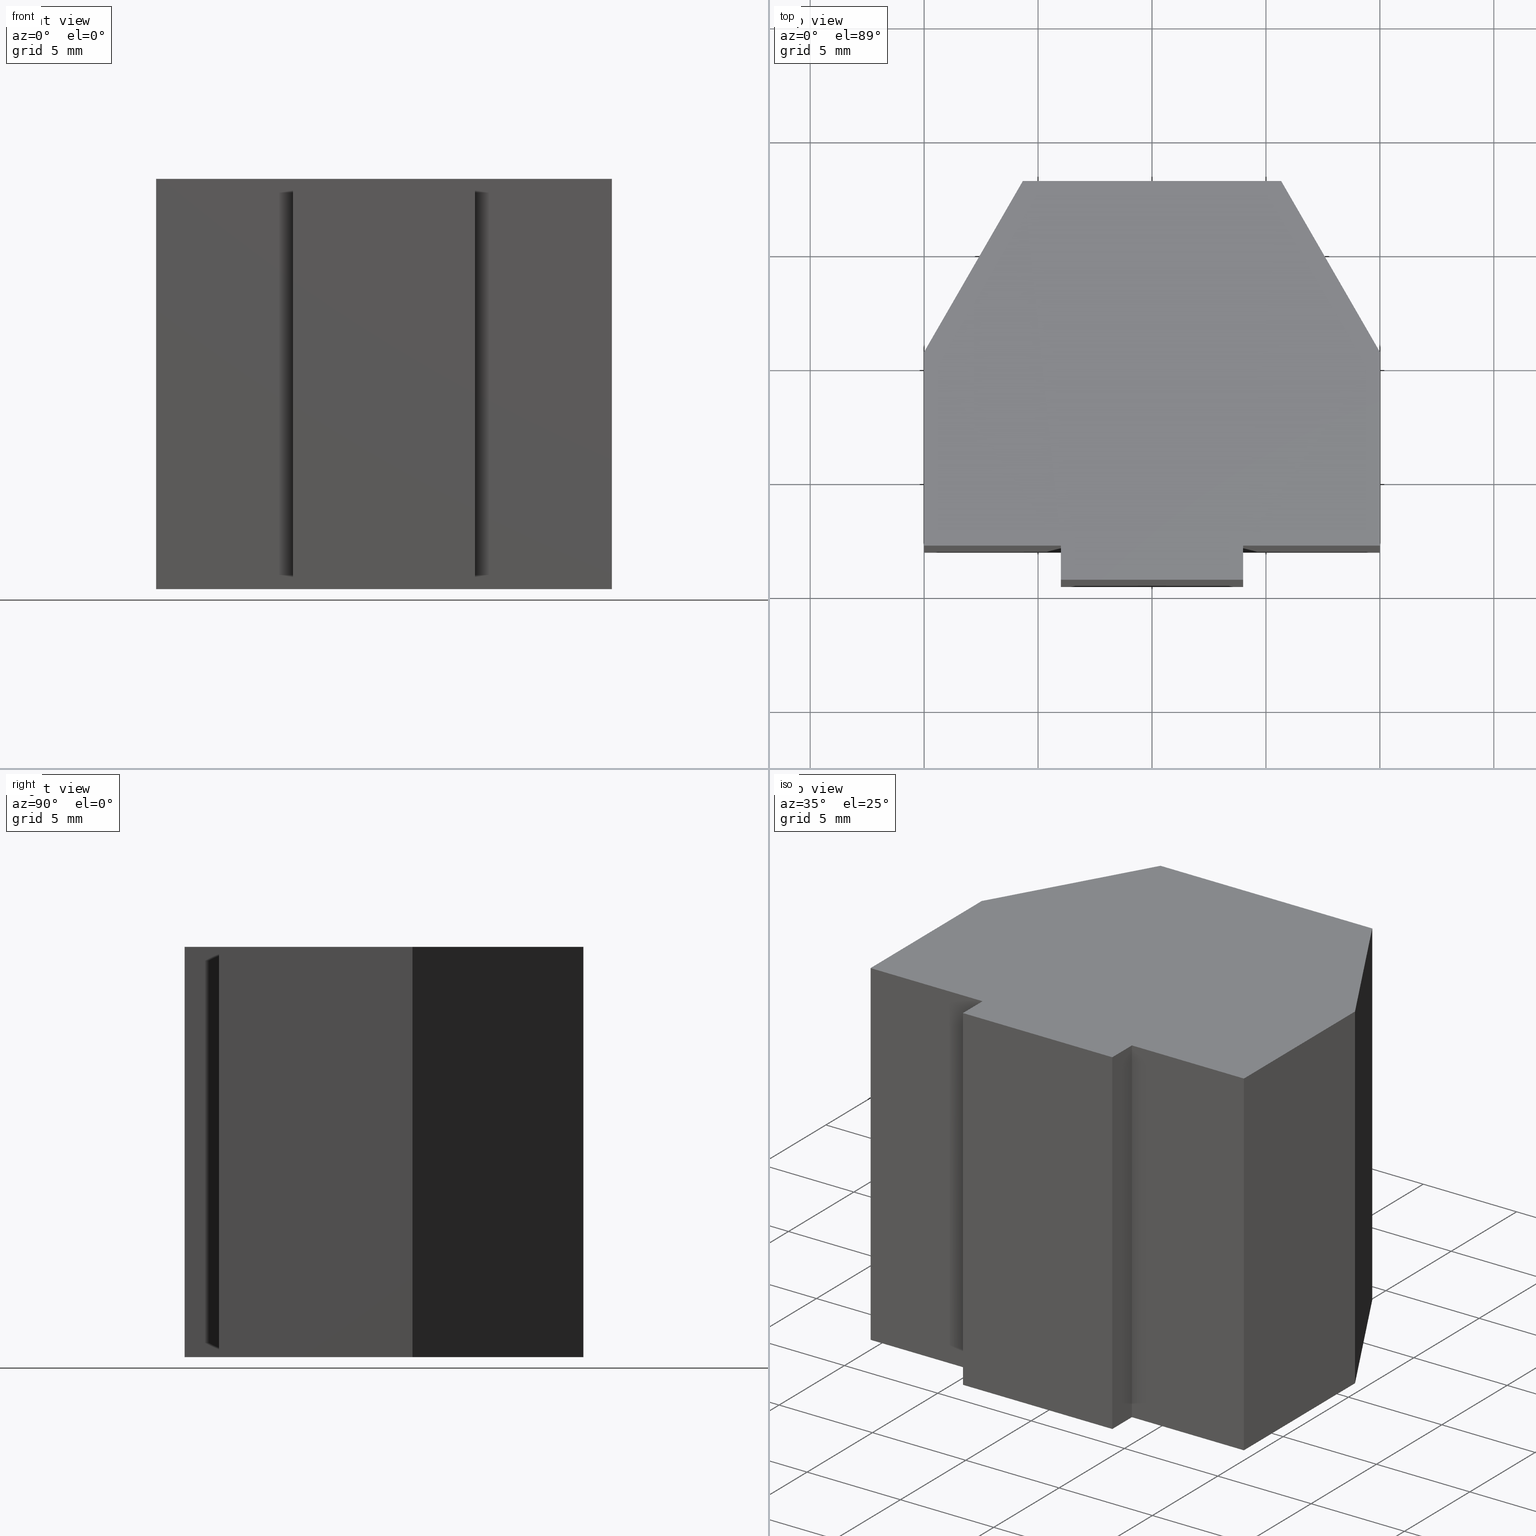
[diagram: canonical four-view strip — front | top / right | iso, engineering-drawing reading convention]
A machine part, canonical four-view strip (front | top / right | iso — engineering-drawing reading convention). The complete STEP part file that produces these views, byte-faithful:
ISO-10303-21;
HEADER;
/* Generated by software containing ST-Developer
 * from STEP Tools, Inc. (www.steptools.com) 
 */

FILE_DESCRIPTION(
/* description */ (''),
/* implementation_level */ '2;1');

FILE_NAME(
/* name */ 'E_3_01_06_07_00_WKZ-0140.stp',
/* time_stamp */ '2025-11-24T11:54:22+01:00',
/* author */ ('d.fischer'),
/* organization */ (''),
/* preprocessor_version */ 'ST-DEVELOPER v20',
/* originating_system */ 'Autodesk Inventor 2025',
/* authorisation */ '');

FILE_SCHEMA (('AUTOMOTIVE_DESIGN { 1 0 10303 214 3 1 1 }'));
ENDSEC;

DATA;
#10=MECHANICAL_DESIGN_GEOMETRIC_PRESENTATION_REPRESENTATION('',(#14,#15),
#391);
#11=SHAPE_REPRESENTATION_RELATIONSHIP('SRR','None',#398,#12);
#12=ADVANCED_BREP_SHAPE_REPRESENTATION('',(#13),#390);
#13=MANIFOLD_SOLID_BREP('Volumenk\X\F6rper1',#234);
#14=STYLED_ITEM('',(#408),#224);
#15=STYLED_ITEM('',(#407),#13);
#16=FACE_OUTER_BOUND('',#28,.T.);
#17=FACE_OUTER_BOUND('',#29,.T.);
#18=FACE_OUTER_BOUND('',#30,.T.);
#19=FACE_OUTER_BOUND('',#31,.T.);
#20=FACE_OUTER_BOUND('',#32,.T.);
#21=FACE_OUTER_BOUND('',#33,.T.);
#22=FACE_OUTER_BOUND('',#34,.T.);
#23=FACE_OUTER_BOUND('',#35,.T.);
#24=FACE_OUTER_BOUND('',#36,.T.);
#25=FACE_OUTER_BOUND('',#37,.T.);
#26=FACE_OUTER_BOUND('',#38,.T.);
#27=FACE_OUTER_BOUND('',#39,.T.);
#28=EDGE_LOOP('',(#150,#151,#152,#153,#154,#155,#156,#157,#158,#159));
#29=EDGE_LOOP('',(#160,#161,#162,#163));
#30=EDGE_LOOP('',(#164,#165,#166,#167));
#31=EDGE_LOOP('',(#168,#169,#170,#171));
#32=EDGE_LOOP('',(#172,#173,#174,#175));
#33=EDGE_LOOP('',(#176,#177,#178,#179));
#34=EDGE_LOOP('',(#180,#181,#182,#183));
#35=EDGE_LOOP('',(#184,#185,#186,#187));
#36=EDGE_LOOP('',(#188,#189,#190,#191));
#37=EDGE_LOOP('',(#192,#193,#194,#195));
#38=EDGE_LOOP('',(#196,#197,#198,#199));
#39=EDGE_LOOP('',(#200,#201,#202,#203,#204,#205,#206,#207,#208,#209));
#40=LINE('',#329,#70);
#41=LINE('',#331,#71);
#42=LINE('',#333,#72);
#43=LINE('',#335,#73);
#44=LINE('',#337,#74);
#45=LINE('',#339,#75);
#46=LINE('',#341,#76);
#47=LINE('',#343,#77);
#48=LINE('',#345,#78);
#49=LINE('',#346,#79);
#50=LINE('',#350,#80);
#51=LINE('',#351,#81);
#52=LINE('',#352,#82);
#53=LINE('',#355,#83);
#54=LINE('',#356,#84);
#55=LINE('',#359,#85);
#56=LINE('',#360,#86);
#57=LINE('',#363,#87);
#58=LINE('',#364,#88);
#59=LINE('',#367,#89);
#60=LINE('',#368,#90);
#61=LINE('',#371,#91);
#62=LINE('',#372,#92);
#63=LINE('',#375,#93);
#64=LINE('',#376,#94);
#65=LINE('',#379,#95);
#66=LINE('',#380,#96);
#67=LINE('',#383,#97);
#68=LINE('',#384,#98);
#69=LINE('',#386,#99);
#70=VECTOR('',#273,10.);
#71=VECTOR('',#274,10.);
#72=VECTOR('',#275,10.);
#73=VECTOR('',#276,10.);
#74=VECTOR('',#277,10.);
#75=VECTOR('',#278,10.);
#76=VECTOR('',#279,10.);
#77=VECTOR('',#280,10.);
#78=VECTOR('',#281,10.);
#79=VECTOR('',#282,10.);
#80=VECTOR('',#285,10.);
#81=VECTOR('',#286,10.);
#82=VECTOR('',#287,10.);
#83=VECTOR('',#290,10.);
#84=VECTOR('',#291,10.);
#85=VECTOR('',#294,10.);
#86=VECTOR('',#295,10.);
#87=VECTOR('',#298,10.);
#88=VECTOR('',#299,10.);
#89=VECTOR('',#302,10.);
#90=VECTOR('',#303,10.);
#91=VECTOR('',#306,10.);
#92=VECTOR('',#307,10.);
#93=VECTOR('',#310,10.);
#94=VECTOR('',#311,10.);
#95=VECTOR('',#314,10.);
#96=VECTOR('',#315,10.);
#97=VECTOR('',#318,10.);
#98=VECTOR('',#319,10.);
#99=VECTOR('',#322,10.);
#100=VERTEX_POINT('',#327);
#101=VERTEX_POINT('',#328);
#102=VERTEX_POINT('',#330);
#103=VERTEX_POINT('',#332);
#104=VERTEX_POINT('',#334);
#105=VERTEX_POINT('',#336);
#106=VERTEX_POINT('',#338);
#107=VERTEX_POINT('',#340);
#108=VERTEX_POINT('',#342);
#109=VERTEX_POINT('',#344);
#110=VERTEX_POINT('',#348);
#111=VERTEX_POINT('',#349);
#112=VERTEX_POINT('',#354);
#113=VERTEX_POINT('',#358);
#114=VERTEX_POINT('',#362);
#115=VERTEX_POINT('',#366);
#116=VERTEX_POINT('',#370);
#117=VERTEX_POINT('',#374);
#118=VERTEX_POINT('',#378);
#119=VERTEX_POINT('',#382);
#120=EDGE_CURVE('',#100,#101,#40,.T.);
#121=EDGE_CURVE('',#102,#100,#41,.T.);
#122=EDGE_CURVE('',#103,#102,#42,.T.);
#123=EDGE_CURVE('',#104,#103,#43,.T.);
#124=EDGE_CURVE('',#105,#104,#44,.T.);
#125=EDGE_CURVE('',#106,#105,#45,.T.);
#126=EDGE_CURVE('',#107,#106,#46,.T.);
#127=EDGE_CURVE('',#108,#107,#47,.T.);
#128=EDGE_CURVE('',#109,#108,#48,.T.);
#129=EDGE_CURVE('',#101,#109,#49,.T.);
#130=EDGE_CURVE('',#110,#111,#50,.T.);
#131=EDGE_CURVE('',#111,#103,#51,.T.);
#132=EDGE_CURVE('',#110,#102,#52,.T.);
#133=EDGE_CURVE('',#111,#112,#53,.T.);
#134=EDGE_CURVE('',#112,#104,#54,.T.);
#135=EDGE_CURVE('',#112,#113,#55,.T.);
#136=EDGE_CURVE('',#113,#105,#56,.T.);
#137=EDGE_CURVE('',#113,#114,#57,.T.);
#138=EDGE_CURVE('',#114,#106,#58,.T.);
#139=EDGE_CURVE('',#114,#115,#59,.T.);
#140=EDGE_CURVE('',#115,#107,#60,.T.);
#141=EDGE_CURVE('',#115,#116,#61,.T.);
#142=EDGE_CURVE('',#116,#108,#62,.T.);
#143=EDGE_CURVE('',#116,#117,#63,.T.);
#144=EDGE_CURVE('',#117,#109,#64,.T.);
#145=EDGE_CURVE('',#117,#118,#65,.T.);
#146=EDGE_CURVE('',#118,#101,#66,.T.);
#147=EDGE_CURVE('',#118,#119,#67,.T.);
#148=EDGE_CURVE('',#100,#119,#68,.T.);
#149=EDGE_CURVE('',#119,#110,#69,.T.);
#150=ORIENTED_EDGE('',*,*,#120,.F.);
#151=ORIENTED_EDGE('',*,*,#121,.F.);
#152=ORIENTED_EDGE('',*,*,#122,.F.);
#153=ORIENTED_EDGE('',*,*,#123,.F.);
#154=ORIENTED_EDGE('',*,*,#124,.F.);
#155=ORIENTED_EDGE('',*,*,#125,.F.);
#156=ORIENTED_EDGE('',*,*,#126,.F.);
#157=ORIENTED_EDGE('',*,*,#127,.F.);
#158=ORIENTED_EDGE('',*,*,#128,.F.);
#159=ORIENTED_EDGE('',*,*,#129,.F.);
#160=ORIENTED_EDGE('',*,*,#130,.T.);
#161=ORIENTED_EDGE('',*,*,#131,.T.);
#162=ORIENTED_EDGE('',*,*,#122,.T.);
#163=ORIENTED_EDGE('',*,*,#132,.F.);
#164=ORIENTED_EDGE('',*,*,#133,.T.);
#165=ORIENTED_EDGE('',*,*,#134,.T.);
#166=ORIENTED_EDGE('',*,*,#123,.T.);
#167=ORIENTED_EDGE('',*,*,#131,.F.);
#168=ORIENTED_EDGE('',*,*,#135,.T.);
#169=ORIENTED_EDGE('',*,*,#136,.T.);
#170=ORIENTED_EDGE('',*,*,#124,.T.);
#171=ORIENTED_EDGE('',*,*,#134,.F.);
#172=ORIENTED_EDGE('',*,*,#137,.T.);
#173=ORIENTED_EDGE('',*,*,#138,.T.);
#174=ORIENTED_EDGE('',*,*,#125,.T.);
#175=ORIENTED_EDGE('',*,*,#136,.F.);
#176=ORIENTED_EDGE('',*,*,#139,.T.);
#177=ORIENTED_EDGE('',*,*,#140,.T.);
#178=ORIENTED_EDGE('',*,*,#126,.T.);
#179=ORIENTED_EDGE('',*,*,#138,.F.);
#180=ORIENTED_EDGE('',*,*,#141,.T.);
#181=ORIENTED_EDGE('',*,*,#142,.T.);
#182=ORIENTED_EDGE('',*,*,#127,.T.);
#183=ORIENTED_EDGE('',*,*,#140,.F.);
#184=ORIENTED_EDGE('',*,*,#143,.T.);
#185=ORIENTED_EDGE('',*,*,#144,.T.);
#186=ORIENTED_EDGE('',*,*,#128,.T.);
#187=ORIENTED_EDGE('',*,*,#142,.F.);
#188=ORIENTED_EDGE('',*,*,#145,.T.);
#189=ORIENTED_EDGE('',*,*,#146,.T.);
#190=ORIENTED_EDGE('',*,*,#129,.T.);
#191=ORIENTED_EDGE('',*,*,#144,.F.);
#192=ORIENTED_EDGE('',*,*,#147,.T.);
#193=ORIENTED_EDGE('',*,*,#148,.F.);
#194=ORIENTED_EDGE('',*,*,#120,.T.);
#195=ORIENTED_EDGE('',*,*,#146,.F.);
#196=ORIENTED_EDGE('',*,*,#149,.T.);
#197=ORIENTED_EDGE('',*,*,#132,.T.);
#198=ORIENTED_EDGE('',*,*,#121,.T.);
#199=ORIENTED_EDGE('',*,*,#148,.T.);
#200=ORIENTED_EDGE('',*,*,#130,.F.);
#201=ORIENTED_EDGE('',*,*,#149,.F.);
#202=ORIENTED_EDGE('',*,*,#147,.F.);
#203=ORIENTED_EDGE('',*,*,#145,.F.);
#204=ORIENTED_EDGE('',*,*,#143,.F.);
#205=ORIENTED_EDGE('',*,*,#141,.F.);
#206=ORIENTED_EDGE('',*,*,#139,.F.);
#207=ORIENTED_EDGE('',*,*,#137,.F.);
#208=ORIENTED_EDGE('',*,*,#135,.F.);
#209=ORIENTED_EDGE('',*,*,#133,.F.);
#210=PLANE('',#257);
#211=PLANE('',#258);
#212=PLANE('',#259);
#213=PLANE('',#260);
#214=PLANE('',#261);
#215=PLANE('',#262);
#216=PLANE('',#263);
#217=PLANE('',#264);
#218=PLANE('',#265);
#219=PLANE('',#266);
#220=PLANE('',#267);
#221=PLANE('',#268);
#222=ADVANCED_FACE('',(#16),#210,.F.);
#223=ADVANCED_FACE('',(#17),#211,.T.);
#224=ADVANCED_FACE('',(#18),#212,.T.);
#225=ADVANCED_FACE('',(#19),#213,.T.);
#226=ADVANCED_FACE('',(#20),#214,.T.);
#227=ADVANCED_FACE('',(#21),#215,.T.);
#228=ADVANCED_FACE('',(#22),#216,.T.);
#229=ADVANCED_FACE('',(#23),#217,.T.);
#230=ADVANCED_FACE('',(#24),#218,.T.);
#231=ADVANCED_FACE('',(#25),#219,.T.);
#232=ADVANCED_FACE('',(#26),#220,.T.);
#233=ADVANCED_FACE('',(#27),#221,.T.);
#234=CLOSED_SHELL('',(#222,#223,#224,#225,#226,#227,#228,#229,#230,#231,
#232,#233));
#235=DERIVED_UNIT_ELEMENT(#238,1.);
#236=DERIVED_UNIT_ELEMENT(#393,-3.);
#237=DIMENSIONAL_EXPONENTS(0.,1.,0.,0.,0.,0.,0.);
#238=(
CONVERSION_BASED_UNIT('gram',#240)
MASS_UNIT()
NAMED_UNIT(#237)
);
#239=(
MASS_UNIT()
NAMED_UNIT(*)
SI_UNIT(.KILO.,.GRAM.)
);
#240=MASS_MEASURE_WITH_UNIT(MASS_MEASURE(0.001),#239);
#241=DERIVED_UNIT((#235,#236));
#242=MEASURE_REPRESENTATION_ITEM('density measure',
POSITIVE_RATIO_MEASURE(8.03),#241);
#243=PROPERTY_DEFINITION_REPRESENTATION(#248,#245);
#244=PROPERTY_DEFINITION_REPRESENTATION(#249,#246);
#245=REPRESENTATION('material name',(#247),#390);
#246=REPRESENTATION('density',(#242),#390);
#247=DESCRIPTIVE_REPRESENTATION_ITEM('1.4301','1.4301');
#248=PROPERTY_DEFINITION('material property','material name',#400);
#249=PROPERTY_DEFINITION('material property','density of part',#400);
#250=DATE_TIME_ROLE('creation_date');
#251=APPLIED_DATE_AND_TIME_ASSIGNMENT(#252,#250,(#400));
#252=DATE_AND_TIME(#253,#254);
#253=CALENDAR_DATE(2011,18,10);
#254=LOCAL_TIME(0,0,0.,#255);
#255=COORDINATED_UNIVERSAL_TIME_OFFSET(0,0,.BEHIND.);
#256=AXIS2_PLACEMENT_3D('',#325,#269,#270);
#257=AXIS2_PLACEMENT_3D('',#326,#271,#272);
#258=AXIS2_PLACEMENT_3D('',#347,#283,#284);
#259=AXIS2_PLACEMENT_3D('',#353,#288,#289);
#260=AXIS2_PLACEMENT_3D('',#357,#292,#293);
#261=AXIS2_PLACEMENT_3D('',#361,#296,#297);
#262=AXIS2_PLACEMENT_3D('',#365,#300,#301);
#263=AXIS2_PLACEMENT_3D('',#369,#304,#305);
#264=AXIS2_PLACEMENT_3D('',#373,#308,#309);
#265=AXIS2_PLACEMENT_3D('',#377,#312,#313);
#266=AXIS2_PLACEMENT_3D('',#381,#316,#317);
#267=AXIS2_PLACEMENT_3D('',#385,#320,#321);
#268=AXIS2_PLACEMENT_3D('',#387,#323,#324);
#269=DIRECTION('axis',(0.,0.,1.));
#270=DIRECTION('refdir',(1.,0.,0.));
#271=DIRECTION('center_axis',(0.,0.,1.));
#272=DIRECTION('ref_axis',(1.,0.,0.));
#273=DIRECTION('',(-2.61228946970625E-16,1.,0.));
#274=DIRECTION('',(1.,0.,0.));
#275=DIRECTION('',(0.,1.,0.));
#276=DIRECTION('',(1.,0.,0.));
#277=DIRECTION('',(0.,-1.,0.));
#278=DIRECTION('',(1.,0.,0.));
#279=DIRECTION('',(-2.61228946970625E-16,-1.,0.));
#280=DIRECTION('',(-0.5,-0.866025403784439,0.));
#281=DIRECTION('',(-1.,0.,0.));
#282=DIRECTION('',(-0.5,0.866025403784439,0.));
#283=DIRECTION('center_axis',(1.,0.,0.));
#284=DIRECTION('ref_axis',(0.,0.,-1.));
#285=DIRECTION('',(0.,-1.,0.));
#286=DIRECTION('',(0.,0.,-1.));
#287=DIRECTION('',(0.,0.,-1.));
#288=DIRECTION('center_axis',(0.,-1.,0.));
#289=DIRECTION('ref_axis',(0.,0.,-1.));
#290=DIRECTION('',(-1.,0.,0.));
#291=DIRECTION('',(0.,0.,-1.));
#292=DIRECTION('center_axis',(-1.,0.,0.));
#293=DIRECTION('ref_axis',(0.,0.,1.));
#294=DIRECTION('',(0.,1.,0.));
#295=DIRECTION('',(0.,0.,-1.));
#296=DIRECTION('center_axis',(0.,-1.,0.));
#297=DIRECTION('ref_axis',(0.,0.,-1.));
#298=DIRECTION('',(-1.,0.,0.));
#299=DIRECTION('',(0.,0.,-1.));
#300=DIRECTION('center_axis',(-1.,2.61228946970625E-16,0.));
#301=DIRECTION('ref_axis',(0.,0.,1.));
#302=DIRECTION('',(2.61228946970625E-16,1.,0.));
#303=DIRECTION('',(0.,0.,-1.));
#304=DIRECTION('center_axis',(-0.866025403784439,0.5,0.));
#305=DIRECTION('ref_axis',(0.,0.,1.));
#306=DIRECTION('',(0.5,0.866025403784439,0.));
#307=DIRECTION('',(0.,0.,-1.));
#308=DIRECTION('center_axis',(0.,1.,0.));
#309=DIRECTION('ref_axis',(0.,0.,1.));
#310=DIRECTION('',(1.,0.,0.));
#311=DIRECTION('',(0.,0.,-1.));
#312=DIRECTION('center_axis',(0.866025403784439,0.5,0.));
#313=DIRECTION('ref_axis',(0.,0.,-1.));
#314=DIRECTION('',(0.5,-0.866025403784439,0.));
#315=DIRECTION('',(0.,0.,-1.));
#316=DIRECTION('center_axis',(1.,2.61228946970625E-16,0.));
#317=DIRECTION('ref_axis',(0.,0.,-1.));
#318=DIRECTION('',(2.61228946970625E-16,-1.,0.));
#319=DIRECTION('',(0.,0.,1.));
#320=DIRECTION('center_axis',(0.,-1.,0.));
#321=DIRECTION('ref_axis',(0.,0.,-1.));
#322=DIRECTION('',(-1.,0.,0.));
#323=DIRECTION('center_axis',(0.,0.,1.));
#324=DIRECTION('ref_axis',(1.,0.,0.));
#325=CARTESIAN_POINT('',(0.,0.,0.));
#326=CARTESIAN_POINT('Origin',(2.77555756156289E-16,-1.42250963602965,-9.));
#327=CARTESIAN_POINT('',(10.,-7.99999999999999,-9.));
#328=CARTESIAN_POINT('',(10.,0.500000000000007,-9.));
#329=CARTESIAN_POINT('',(10.,0.500000000000007,-9.));
#330=CARTESIAN_POINT('',(4.,-7.99999999999999,-9.));
#331=CARTESIAN_POINT('',(10.,-7.99999999999999,-9.));
#332=CARTESIAN_POINT('',(4.,-9.5,-9.));
#333=CARTESIAN_POINT('',(4.,-7.99999999999999,-9.));
#334=CARTESIAN_POINT('',(-4.,-9.5,-9.));
#335=CARTESIAN_POINT('',(4.,-9.5,-9.));
#336=CARTESIAN_POINT('',(-4.,-7.99999999999999,-9.));
#337=CARTESIAN_POINT('',(-4.,-9.5,-9.));
#338=CARTESIAN_POINT('',(-10.,-7.99999999999999,-9.));
#339=CARTESIAN_POINT('',(-4.,-7.99999999999999,-9.));
#340=CARTESIAN_POINT('',(-10.,0.500000000000007,-9.));
#341=CARTESIAN_POINT('',(-10.,-7.99999999999999,-9.));
#342=CARTESIAN_POINT('',(-5.6698729810778,8.00000000000001,-9.));
#343=CARTESIAN_POINT('',(-10.,0.500000000000007,-9.));
#344=CARTESIAN_POINT('',(5.66987298107781,8.00000000000001,-9.));
#345=CARTESIAN_POINT('',(-5.6698729810778,8.00000000000001,-9.));
#346=CARTESIAN_POINT('',(5.66987298107781,8.00000000000001,-9.));
#347=CARTESIAN_POINT('Origin',(4.,-7.99999999999999,0.));
#348=CARTESIAN_POINT('',(4.,-7.99999999999999,9.));
#349=CARTESIAN_POINT('',(4.,-9.5,9.));
#350=CARTESIAN_POINT('',(4.,-7.99999999999999,9.));
#351=CARTESIAN_POINT('',(4.,-9.5,0.));
#352=CARTESIAN_POINT('',(4.,-7.99999999999999,0.));
#353=CARTESIAN_POINT('Origin',(4.,-9.5,0.));
#354=CARTESIAN_POINT('',(-4.,-9.5,9.));
#355=CARTESIAN_POINT('',(4.,-9.5,9.));
#356=CARTESIAN_POINT('',(-4.,-9.5,0.));
#357=CARTESIAN_POINT('Origin',(-4.,-9.5,0.));
#358=CARTESIAN_POINT('',(-4.,-7.99999999999999,9.));
#359=CARTESIAN_POINT('',(-4.,-9.5,9.));
#360=CARTESIAN_POINT('',(-4.,-7.99999999999999,0.));
#361=CARTESIAN_POINT('Origin',(-4.,-7.99999999999999,0.));
#362=CARTESIAN_POINT('',(-10.,-7.99999999999999,9.));
#363=CARTESIAN_POINT('',(-4.,-7.99999999999999,9.));
#364=CARTESIAN_POINT('',(-10.,-7.99999999999999,0.));
#365=CARTESIAN_POINT('Origin',(-10.,-7.99999999999999,0.));
#366=CARTESIAN_POINT('',(-10.,0.500000000000007,9.));
#367=CARTESIAN_POINT('',(-10.,-7.99999999999999,9.));
#368=CARTESIAN_POINT('',(-10.,0.500000000000007,0.));
#369=CARTESIAN_POINT('Origin',(-10.,0.500000000000007,0.));
#370=CARTESIAN_POINT('',(-5.6698729810778,8.00000000000001,9.));
#371=CARTESIAN_POINT('',(-10.,0.500000000000007,9.));
#372=CARTESIAN_POINT('',(-5.6698729810778,8.00000000000001,0.));
#373=CARTESIAN_POINT('Origin',(-5.6698729810778,8.00000000000001,0.));
#374=CARTESIAN_POINT('',(5.66987298107781,8.00000000000001,9.));
#375=CARTESIAN_POINT('',(-5.6698729810778,8.00000000000001,9.));
#376=CARTESIAN_POINT('',(5.66987298107781,8.00000000000001,0.));
#377=CARTESIAN_POINT('Origin',(5.66987298107781,8.00000000000001,0.));
#378=CARTESIAN_POINT('',(10.,0.500000000000007,9.));
#379=CARTESIAN_POINT('',(5.66987298107781,8.00000000000001,9.));
#380=CARTESIAN_POINT('',(10.,0.500000000000007,0.));
#381=CARTESIAN_POINT('Origin',(10.,0.500000000000007,0.));
#382=CARTESIAN_POINT('',(10.,-7.99999999999999,9.));
#383=CARTESIAN_POINT('',(10.,0.500000000000007,9.));
#384=CARTESIAN_POINT('',(10.,-7.99999999999999,0.));
#385=CARTESIAN_POINT('Origin',(10.,-7.99999999999999,0.));
#386=CARTESIAN_POINT('',(10.,-7.99999999999999,9.));
#387=CARTESIAN_POINT('Origin',(-1.90819582357449E-16,-1.42250963602965,
9.));
#388=UNCERTAINTY_MEASURE_WITH_UNIT(LENGTH_MEASURE(0.01),#392,
'DISTANCE_ACCURACY_VALUE',
'Maximum model space distance between geometric entities at asserted c
onnectivities');
#389=UNCERTAINTY_MEASURE_WITH_UNIT(LENGTH_MEASURE(0.01),#392,
'DISTANCE_ACCURACY_VALUE',
'Maximum model space distance between geometric entities at asserted c
onnectivities');
#390=(
GEOMETRIC_REPRESENTATION_CONTEXT(3)
GLOBAL_UNCERTAINTY_ASSIGNED_CONTEXT((#388))
GLOBAL_UNIT_ASSIGNED_CONTEXT((#392,#394,#395))
REPRESENTATION_CONTEXT('','3D')
);
#391=(
GEOMETRIC_REPRESENTATION_CONTEXT(3)
GLOBAL_UNCERTAINTY_ASSIGNED_CONTEXT((#389))
GLOBAL_UNIT_ASSIGNED_CONTEXT((#392,#394,#395))
REPRESENTATION_CONTEXT('','3D')
);
#392=(
LENGTH_UNIT()
NAMED_UNIT(*)
SI_UNIT(.MILLI.,.METRE.)
);
#393=(
LENGTH_UNIT()
NAMED_UNIT(*)
SI_UNIT(.CENTI.,.METRE.)
);
#394=(
NAMED_UNIT(*)
PLANE_ANGLE_UNIT()
SI_UNIT($,.RADIAN.)
);
#395=(
NAMED_UNIT(*)
SI_UNIT($,.STERADIAN.)
SOLID_ANGLE_UNIT()
);
#396=SHAPE_DEFINITION_REPRESENTATION(#397,#398);
#397=PRODUCT_DEFINITION_SHAPE('',$,#400);
#398=SHAPE_REPRESENTATION('',(#256),#390);
#399=PRODUCT_DEFINITION_CONTEXT('part definition',#404,'design');
#400=PRODUCT_DEFINITION('WKZ-0140','E_3_01_06_07_00_WKZ-0140',#401,#399);
#401=PRODUCT_DEFINITION_FORMATION('',$,#406);
#402=PRODUCT_RELATED_PRODUCT_CATEGORY('E_3_01_06_07_00_WKZ-0140',
'E_3_01_06_07_00_WKZ-0140',(#406));
#403=APPLICATION_PROTOCOL_DEFINITION('international standard',
'automotive_design',2009,#404);
#404=APPLICATION_CONTEXT(
'Core Data for Automotive Mechanical Design Process');
#405=PRODUCT_CONTEXT('part definition',#404,'mechanical');
#406=PRODUCT('WKZ-0140','E_3_01_06_07_00_WKZ-0140',$,(#405));
#407=PRESENTATION_STYLE_ASSIGNMENT((#409));
#408=PRESENTATION_STYLE_ASSIGNMENT((#410));
#409=SURFACE_STYLE_USAGE(.BOTH.,#413);
#410=SURFACE_STYLE_USAGE(.BOTH.,#414);
#411=SURFACE_STYLE_RENDERING_WITH_PROPERTIES($,#421,(#412));
#412=SURFACE_STYLE_TRANSPARENT(0.);
#413=SURFACE_SIDE_STYLE('',(#415,#411));
#414=SURFACE_SIDE_STYLE('',(#416));
#415=SURFACE_STYLE_FILL_AREA(#417);
#416=SURFACE_STYLE_FILL_AREA(#418);
#417=FILL_AREA_STYLE('',(#419));
#418=FILL_AREA_STYLE('',(#420));
#419=FILL_AREA_STYLE_COLOUR('',#421);
#420=FILL_AREA_STYLE_COLOUR('',#422);
#421=COLOUR_RGB('',0.92156862745098,0.92156862745098,0.92156862745098);
#422=COLOUR_RGB('',0.16078431372549,0.16078431372549,0.16078431372549);
ENDSEC;
END-ISO-10303-21;
